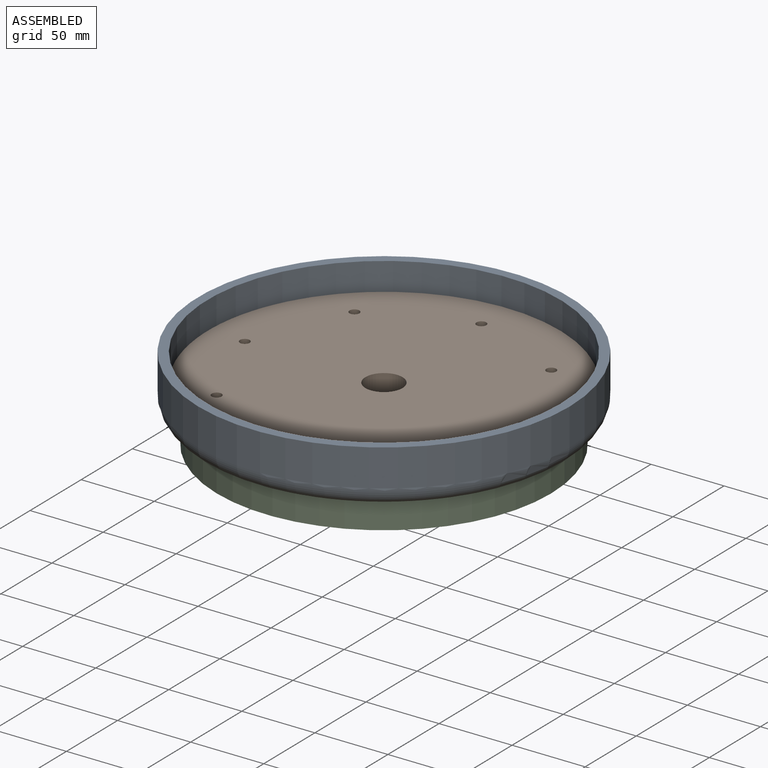
[diagram: assembled view]
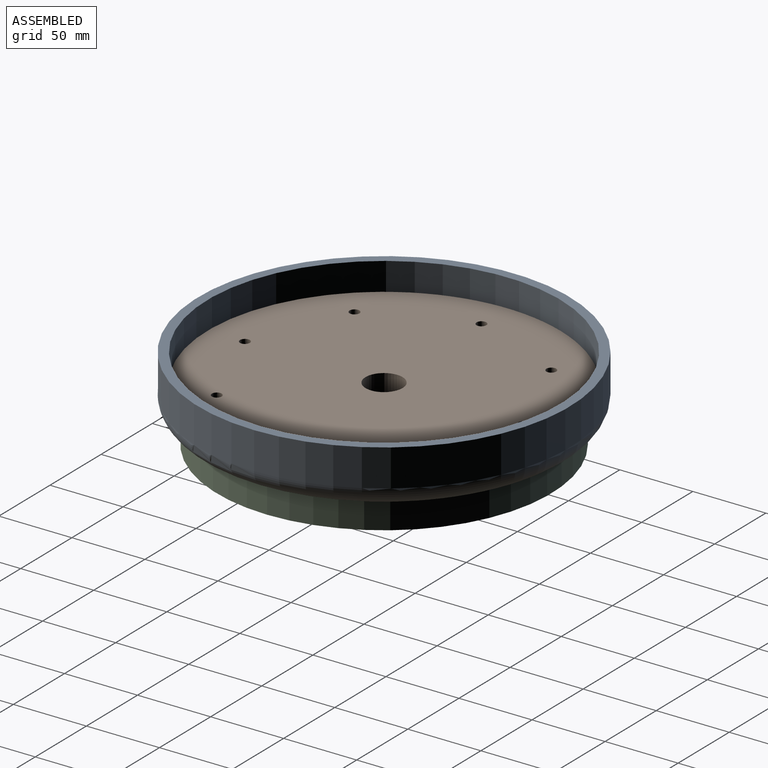
[diagram: assembled view, second angle]
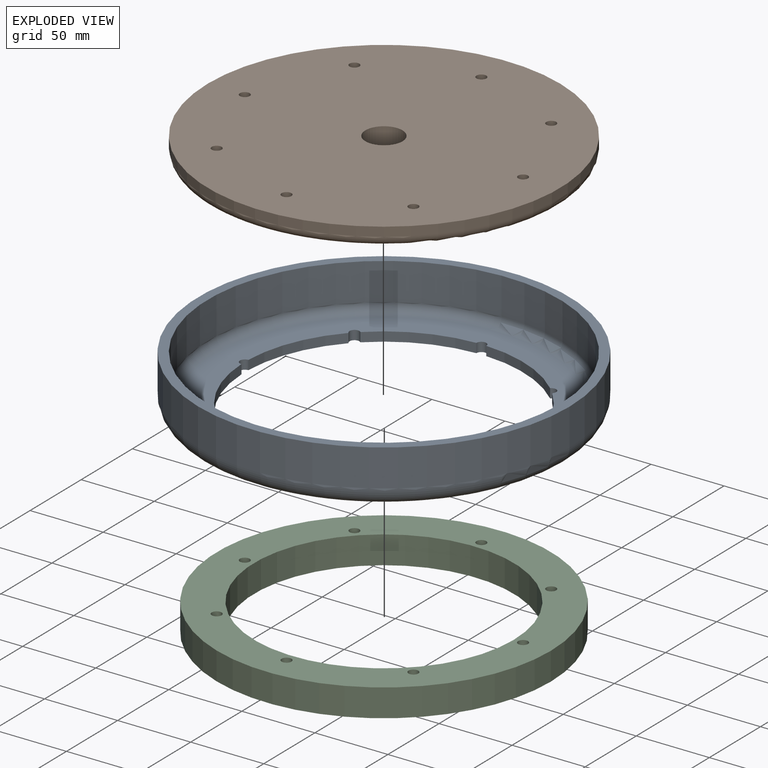
[diagram: exploded view]
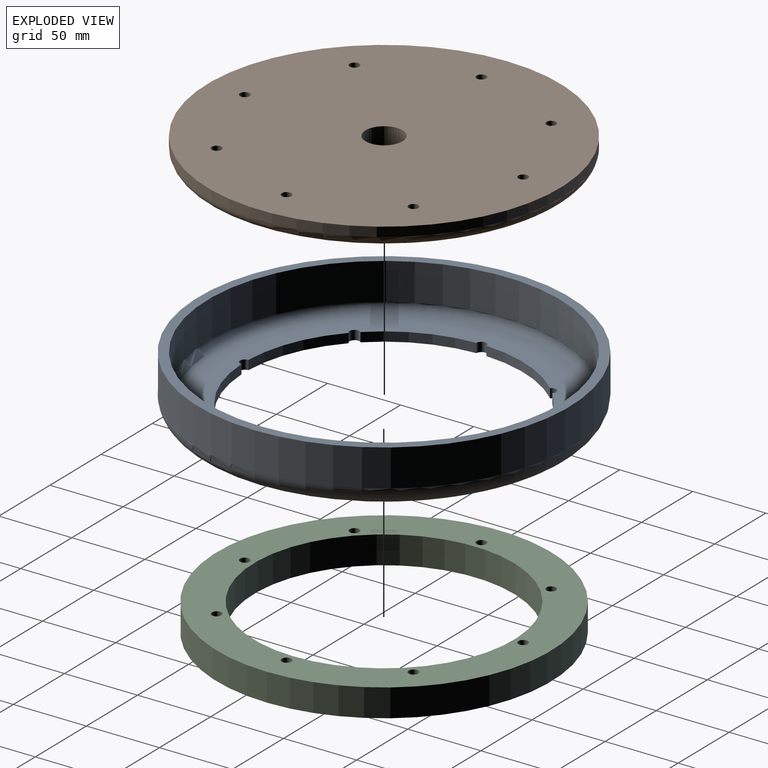
[diagram: exploded view, second angle]
ASSEMBLY  parts=3 mates=2
PART A: 23 faces, bbox 274.9x274.9x38.1 mm
  f0: cylinder r=95.25mm len=61.57mm, axis (0,0,1), area 432.3mm2, adj f7,f8,f21,f22
  f1: cylinder r=95.25mm len=61.57mm, axis (0,0,1), area 432.3mm2, adj f7,f8,f20,f21
  f2: cylinder r=95.25mm len=61.57mm, axis (0,0,1), area 432.3mm2, adj f7,f8,f19,f20
  f3: cylinder r=95.25mm len=61.57mm, axis (0,0,1), area 432.3mm2, adj f7,f8,f18,f19
  f4: cylinder r=95.25mm len=61.57mm, axis (0,0,1), area 432.3mm2, adj f7,f8,f17,f18
  f5: cylinder r=95.25mm len=61.57mm, axis (0,0,1), area 432.3mm2, adj f7,f8,f16,f17
  f6: cylinder r=95.25mm len=61.57mm, axis (0,0,1), area 432.3mm2, adj f7,f8,f15,f16
  f7: plane 228.6x228.6mm, normal (0,0,-1), area 12397.6mm2, adj f0,f1,f2,f3,f4,f5,f6,f9
  f8: plane 228.6x228.6mm, normal (0,0,1), area 12397.6mm2, adj f0,f1,f2,f3,f4,f5,f6,f9
  f9: cylinder r=95.25mm len=61.57mm, axis (0,0,1), area 432.3mm2, adj f7,f8,f15,f22
  f10: torus R=114.3mm, axis (0,0,1), area 15340.2mm2, adj f7,f11
  f11: cylinder r=127mm len=254mm, axis (0,0,1), area 20268.3mm2, adj f10,f12
  f12: plane 254x254mm, normal (0,0,1), area 4940.4mm2, adj f11,f13
  f13: cylinder r=120.65mm len=241.3mm, axis (0,0,1), area 19254.9mm2, adj f12,f14
  f14: torus R=114.3mm, axis (0,0,1), area 7416.8mm2, adj f8,f13
  f15: cylinder r=3.37mm len=6.35mm, axis (0,0,-1), area 67.9mm2, adj f6,f7,f8,f9
  f16: cylinder r=3.37mm len=6.73mm, axis (0,0,-1), area 67.9mm2, adj f5,f6,f7,f8
  f17: cylinder r=3.37mm len=6.35mm, axis (0,0,-1), area 67.9mm2, adj f4,f5,f7,f8
  f18: cylinder r=3.37mm len=6.73mm, axis (0,0,-1), area 67.9mm2, adj f3,f4,f7,f8
  f19: cylinder r=3.37mm len=6.35mm, axis (0,0,-1), area 67.9mm2, adj f2,f3,f7,f8
  f20: cylinder r=3.37mm len=6.73mm, axis (0,0,-1), area 67.9mm2, adj f1,f2,f7,f8
  f21: cylinder r=3.37mm len=6.35mm, axis (0,0,-1), area 67.9mm2, adj f0,f1,f7,f8
  f22: cylinder r=3.37mm len=6.73mm, axis (0,0,-1), area 67.9mm2, adj f0,f7,f8,f9
PART B: 13 faces, bbox 261.2x261.2x12.7 mm
  f0: cylinder r=120.65mm len=241.3mm, axis (0,0,-1), area 4813.7mm2, adj f1,f4
  f1: torus R=114.3mm, axis (0,0,-1), area 7416.8mm2, adj f0,f2
  f2: plane 228.6x228.6mm, normal (0,0,-1), area 40251.9mm2, adj f1,f3,f5,f6,f7,f8,f9,f10
  f3: cylinder r=12.7mm len=25.4mm, axis (0,0,-1), area 1013.4mm2, adj f2,f4
  f4: plane 241.3x241.3mm, normal (0,0,1), area 44939mm2, adj f0,f3,f5,f6,f7,f8,f9,f10
  f5: cylinder r=3.37mm len=12.7mm, axis (0,0,1), area 268.6mm2, adj f2,f4
  f6: cylinder r=3.37mm len=12.7mm, axis (0,0,1), area 268.6mm2, adj f2,f4
  f7: cylinder r=3.37mm len=12.7mm, axis (0,0,1), area 268.6mm2, adj f2,f4
  f8: cylinder r=3.37mm len=12.7mm, axis (0,0,1), area 268.6mm2, adj f2,f4
  f9: cylinder r=3.37mm len=12.7mm, axis (0,0,1), area 268.6mm2, adj f2,f4
  f10: cylinder r=3.37mm len=12.7mm, axis (0,0,1), area 268.6mm2, adj f2,f4
  f11: cylinder r=3.37mm len=12.7mm, axis (0,0,1), area 268.6mm2, adj f2,f4
  f12: cylinder r=3.37mm len=12.7mm, axis (0,0,1), area 268.6mm2, adj f2,f4
PART C: 12 faces, bbox 228.6x228.6x19.1 mm
  f0: cylinder r=88.9mm len=177.8mm, axis (0,0,-1), area 10640.9mm2, adj f10,f11
  f1: cylinder r=3.37mm len=19.05mm, axis (0,0,-1), area 402.8mm2, adj f10,f11
  f2: cylinder r=3.37mm len=19.05mm, axis (0,0,-1), area 402.8mm2, adj f10,f11
  f3: cylinder r=3.37mm len=19.05mm, axis (0,0,-1), area 402.8mm2, adj f10,f11
  f4: cylinder r=3.37mm len=19.05mm, axis (0,0,-1), area 402.8mm2, adj f10,f11
  f5: cylinder r=3.37mm len=19.05mm, axis (0,0,-1), area 402.8mm2, adj f10,f11
  f6: cylinder r=3.37mm len=19.05mm, axis (0,0,-1), area 402.8mm2, adj f10,f11
  f7: cylinder r=3.37mm len=19.05mm, axis (0,0,-1), area 402.8mm2, adj f10,f11
  f8: cylinder r=3.37mm len=19.05mm, axis (0,0,-1), area 402.8mm2, adj f10,f11
  f9: cylinder r=114.3mm len=228.6mm, axis (0,0,-1), area 13681.1mm2, adj f10,f11
  f10: plane 228.6x228.6mm, normal (0,0,1), area 15930mm2, adj f0,f1,f2,f3,f4,f5,f6,f7
  f11: plane 228.6x228.6mm, normal (0,0,-1), area 15930mm2, adj f0,f1,f2,f3,f4,f5,f6,f7
PLACE A t=(-38.14,-27.97,-102.28)mm
PLACE B t=(-38.14,-27.97,-121.33)mm
PLACE C t=(-38.14,-27.97,-127.68)mm
MATE fastened A.f0 <-> C.f0  axis (0,0,-1) through (-38.14,-27.97,-108.63)mm
MATE fastened A.f0 <-> B.f0  axis (0,0,1) through (-38.14,-27.97,-102.28)mm
